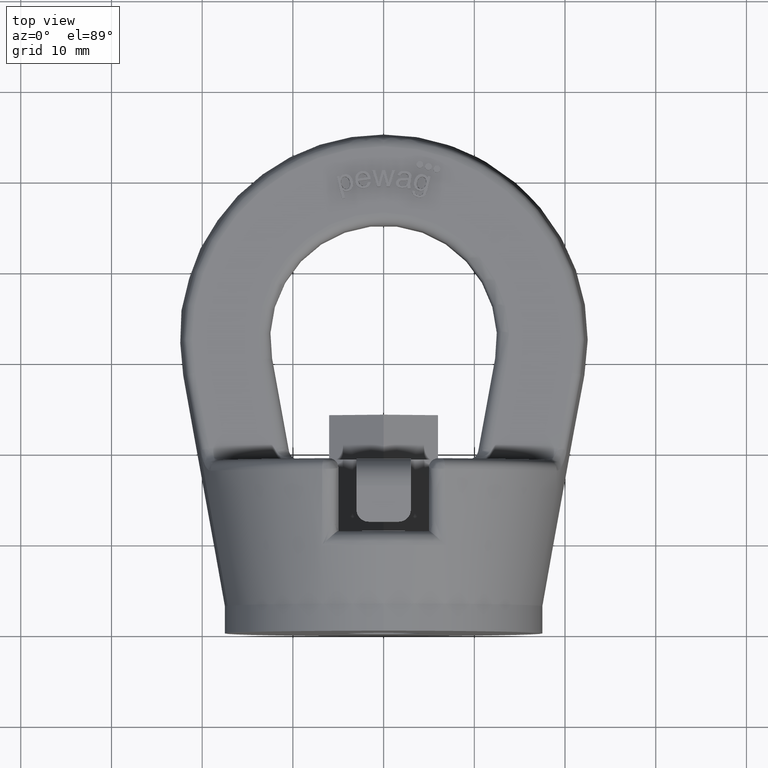
[diagram: clean part render]
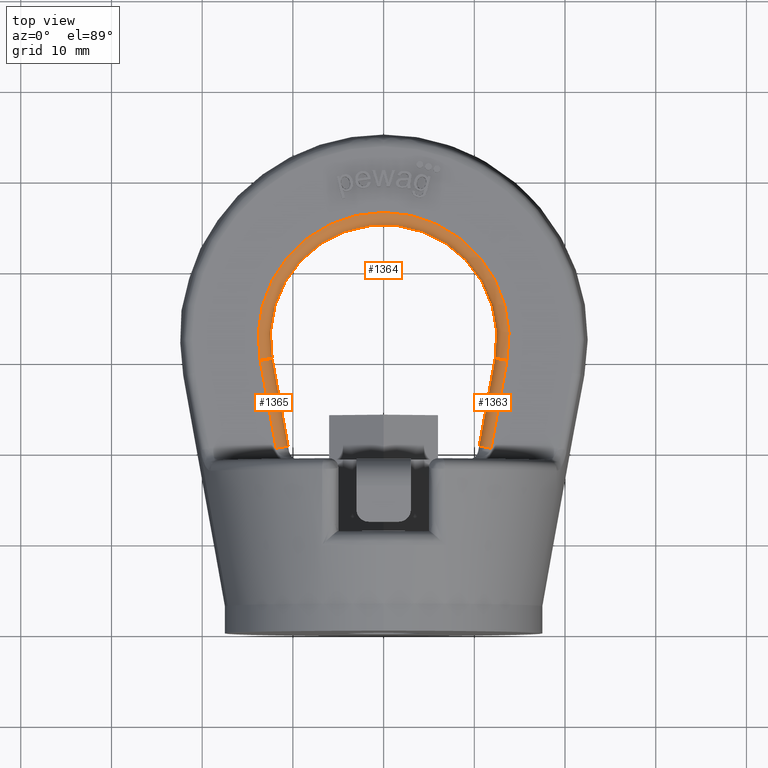
[diagram: same view with one multi-face feature highlighted, each face labeled with its STEP entity id]
A machine part, top view. The highlighted faces form ONE feature: a constant-radius fillet chain: 3 tangent blend faces with common blend radius 1.3333 mm. The faces share edges in the B-rep.
Their STEP definitions:
[1] entity #1364 (Torus):
#1018=TOROIDAL_SURFACE('',#5186,13.8333333333333,1.33333333333333);
#1139=FACE_OUTER_BOUND('',#1883,.T.);
#1364=ADVANCED_FACE('',(#1139),#1018,.T.);
#1679=CIRCLE('',#5104,13.8333333333333);
#1693=CIRCLE('',#5124,12.5);
#1714=CIRCLE('',#5183,1.33333333333333);
#1715=CIRCLE('',#5185,1.33333333333333);
#1883=EDGE_LOOP('',(#2963,#2964,#2965,#2966));
#2963=ORIENTED_EDGE('',*,*,#4430,.T.);
#2964=ORIENTED_EDGE('',*,*,#4286,.F.);
#2965=ORIENTED_EDGE('',*,*,#4431,.F.);
#2966=ORIENTED_EDGE('',*,*,#4346,.F.);
#3902=VERTEX_POINT('',#6400);
#3903=VERTEX_POINT('',#6401);
#3958=VERTEX_POINT('',#6731);
#3959=VERTEX_POINT('',#6733);
#4286=EDGE_CURVE('',#3902,#3903,#1679,.T.);
#4346=EDGE_CURVE('',#3958,#3959,#1693,.T.);
#4430=EDGE_CURVE('',#3958,#3903,#1714,.T.);
#4431=EDGE_CURVE('',#3959,#3902,#1715,.T.);
#5104=AXIS2_PLACEMENT_3D('',#6399,#5399,#5400);
#5124=AXIS2_PLACEMENT_3D('',#6732,#5459,#5460);
#5183=AXIS2_PLACEMENT_3D('',#7213,#5616,#5617);
#5185=AXIS2_PLACEMENT_3D('',#7215,#5620,#5621);
#5186=AXIS2_PLACEMENT_3D('',#7216,#5622,#5623);
#5399=DIRECTION('',(0.,-1.31989829693887E-16,-1.));
#5400=DIRECTION('',(0.,1.,-1.25401697058564E-16));
#5459=DIRECTION('',(0.,1.31989829693887E-16,1.));
#5460=DIRECTION('',(0.,1.,-1.38777878078145E-16));
#5616=DIRECTION('',(0.179081367352328,0.983834266463219,-2.32992489042083E-16));
#5617=DIRECTION('',(-0.983834266463219,0.179081367352328,0.));
#5620=DIRECTION('',(0.179081367352328,-0.983834266463219,-2.32992489042083E-16));
#5621=DIRECTION('',(0.983834266463219,0.179081367352328,0.));
#5622=DIRECTION('',(0.,-1.31989829693887E-16,-1.));
#5623=DIRECTION('',(0.,1.,-1.42971715053034E-16));
#6399=CARTESIAN_POINT('',(3.19803995620443E-17,32.5,5.));
#6400=CARTESIAN_POINT('',(-13.6097073527412,30.0227077516261,5.));
#6401=CARTESIAN_POINT('',(13.6097073527412,30.0227077516261,5.));
#6731=CARTESIAN_POINT('',(12.2979283307902,30.2614829080959,3.66666666666668));
#6732=CARTESIAN_POINT('',(3.19803995620443E-17,32.5,3.66666666666667));
#6733=CARTESIAN_POINT('',(-12.2979283307902,30.2614829080959,3.66666666666668));
#7213=CARTESIAN_POINT('',(13.6097073527412,30.0227077516261,3.66666666666667));
#7215=CARTESIAN_POINT('',(-13.6097073527412,30.0227077516261,3.66666666666667));
#7216=CARTESIAN_POINT('',(3.19803995620443E-17,32.5,3.66666666666667));
[2] entity #1365 (Cylinder):
#1078=CYLINDRICAL_SURFACE('',#5188,1.33333333333333);
#1140=FACE_OUTER_BOUND('',#1884,.T.);
#1365=ADVANCED_FACE('',(#1140),#1078,.T.);
#1715=CIRCLE('',#5185,1.33333333333333);
#1716=CIRCLE('',#5187,1.33333333333333);
#1884=EDGE_LOOP('',(#2967,#2968,#2969,#2970));
#2123=LINE('',#6420,#2393);
#2141=LINE('',#6738,#2411);
#2393=VECTOR('',#5406,1.);
#2411=VECTOR('',#5466,1.);
#2967=ORIENTED_EDGE('',*,*,#4431,.T.);
#2968=ORIENTED_EDGE('',*,*,#4293,.F.);
#2969=ORIENTED_EDGE('',*,*,#4432,.F.);
#2970=ORIENTED_EDGE('',*,*,#4349,.F.);
#3902=VERTEX_POINT('',#6400);
#3909=VERTEX_POINT('',#6419);
#3959=VERTEX_POINT('',#6733);
#3961=VERTEX_POINT('',#6739);
#4293=EDGE_CURVE('',#3909,#3902,#2123,.T.);
#4349=EDGE_CURVE('',#3959,#3961,#2141,.T.);
#4431=EDGE_CURVE('',#3959,#3902,#1715,.T.);
#4432=EDGE_CURVE('',#3961,#3909,#1716,.T.);
#5185=AXIS2_PLACEMENT_3D('',#7215,#5620,#5621);
#5187=AXIS2_PLACEMENT_3D('',#7217,#5624,#5625);
#5188=AXIS2_PLACEMENT_3D('',#7218,#5626,#5627);
#5406=DIRECTION('',(-0.179081367352328,0.983834266463219,-1.29856117277491E-16));
#5466=DIRECTION('',(0.179081367352328,-0.983834266463219,1.29856117277491E-16));
#5620=DIRECTION('',(0.179081367352328,-0.983834266463219,-2.32992489042083E-16));
#5621=DIRECTION('',(0.983834266463219,0.179081367352328,0.));
#5624=DIRECTION('',(0.179081367352328,-0.983834266463219,2.56002059775625E-15));
#5625=DIRECTION('',(0.983834266463219,0.179081367352328,0.));
#5626=DIRECTION('',(0.179081367352328,-0.983834266463219,1.29856117277491E-16));
#5627=DIRECTION('',(0.983834266463218,0.179081367352328,0.));
#6400=CARTESIAN_POINT('',(-13.6097073527412,30.0227077516261,5.));
#6419=CARTESIAN_POINT('',(-11.8460094629997,20.3333333333333,5.00000000000001));
#6420=CARTESIAN_POINT('',(-13.6097073527412,30.0227077516261,5.));
#6733=CARTESIAN_POINT('',(-12.2979283307902,30.2614829080959,3.66666666666668));
#6738=CARTESIAN_POINT('',(-10.4907676516665,20.3333333333333,3.66666666666667));
#6739=CARTESIAN_POINT('',(-10.5342304410488,20.5721084898031,3.66666666666667));
#7215=CARTESIAN_POINT('',(-13.6097073527412,30.0227077516261,3.66666666666667));
#7217=CARTESIAN_POINT('',(-11.8460094629997,20.3333333333333,3.66666666666667));
#7218=CARTESIAN_POINT('',(-18.5500465522931,57.1638618779962,3.66666666666667));
[3] entity #1363 (Cylinder):
#1077=CYLINDRICAL_SURFACE('',#5184,1.33333333333333);
#1138=FACE_OUTER_BOUND('',#1882,.T.);
#1363=ADVANCED_FACE('',(#1138),#1077,.T.);
#1713=CIRCLE('',#5182,1.33333333333333);
#1714=CIRCLE('',#5183,1.33333333333333);
#1882=EDGE_LOOP('',(#2959,#2960,#2961,#2962));
#2120=LINE('',#6402,#2390);
#2165=LINE('',#6882,#2435);
#2390=VECTOR('',#5401,1.);
#2435=VECTOR('',#5508,1.);
#2959=ORIENTED_EDGE('',*,*,#4429,.T.);
#2960=ORIENTED_EDGE('',*,*,#4287,.F.);
#2961=ORIENTED_EDGE('',*,*,#4430,.F.);
#2962=ORIENTED_EDGE('',*,*,#4384,.F.);
#3903=VERTEX_POINT('',#6401);
#3904=VERTEX_POINT('',#6403);
#3958=VERTEX_POINT('',#6731);
#3995=VERTEX_POINT('',#6881);
#4287=EDGE_CURVE('',#3903,#3904,#2120,.T.);
#4384=EDGE_CURVE('',#3995,#3958,#2165,.T.);
#4429=EDGE_CURVE('',#3995,#3904,#1713,.T.);
#4430=EDGE_CURVE('',#3958,#3903,#1714,.T.);
#5182=AXIS2_PLACEMENT_3D('',#7200,#5614,#5615);
#5183=AXIS2_PLACEMENT_3D('',#7213,#5616,#5617);
#5184=AXIS2_PLACEMENT_3D('',#7214,#5618,#5619);
#5401=DIRECTION('',(-0.179081367352328,-0.983834266463219,1.29856117277491E-16));
#5508=DIRECTION('',(0.179081367352328,0.983834266463219,-1.29856117277491E-16));
#5614=DIRECTION('',(0.179081367352328,0.983834266463219,-2.56002059775625E-15));
#5615=DIRECTION('',(-0.983834266463219,0.179081367352328,0.));
#5616=DIRECTION('',(0.179081367352328,0.983834266463219,-2.32992489042083E-16));
#5617=DIRECTION('',(-0.983834266463219,0.179081367352328,0.));
#5618=DIRECTION('',(0.179081367352328,0.983834266463219,-1.29856117277491E-16));
#5619=DIRECTION('',(-0.983834266463218,0.179081367352323,0.));
#6401=CARTESIAN_POINT('',(13.6097073527412,30.0227077516261,5.));
#6402=CARTESIAN_POINT('',(11.8025466736174,20.0945581768636,5.00000000000001));
#6403=CARTESIAN_POINT('',(11.8460094629997,20.3333333333333,5.00000000000001));
#6731=CARTESIAN_POINT('',(12.2979283307902,30.2614829080959,3.66666666666668));
#6881=CARTESIAN_POINT('',(10.5342304410488,20.5721084898031,3.66666666666667));
#6882=CARTESIAN_POINT('',(12.2979283307902,30.2614829080959,3.66666666666667));
#7200=CARTESIAN_POINT('',(11.8460094629997,20.3333333333333,3.66666666666667));
#7213=CARTESIAN_POINT('',(13.6097073527412,30.0227077516261,3.66666666666667));
#7214=CARTESIAN_POINT('',(20.1214832227993,65.7969947766253,3.66666666666667));